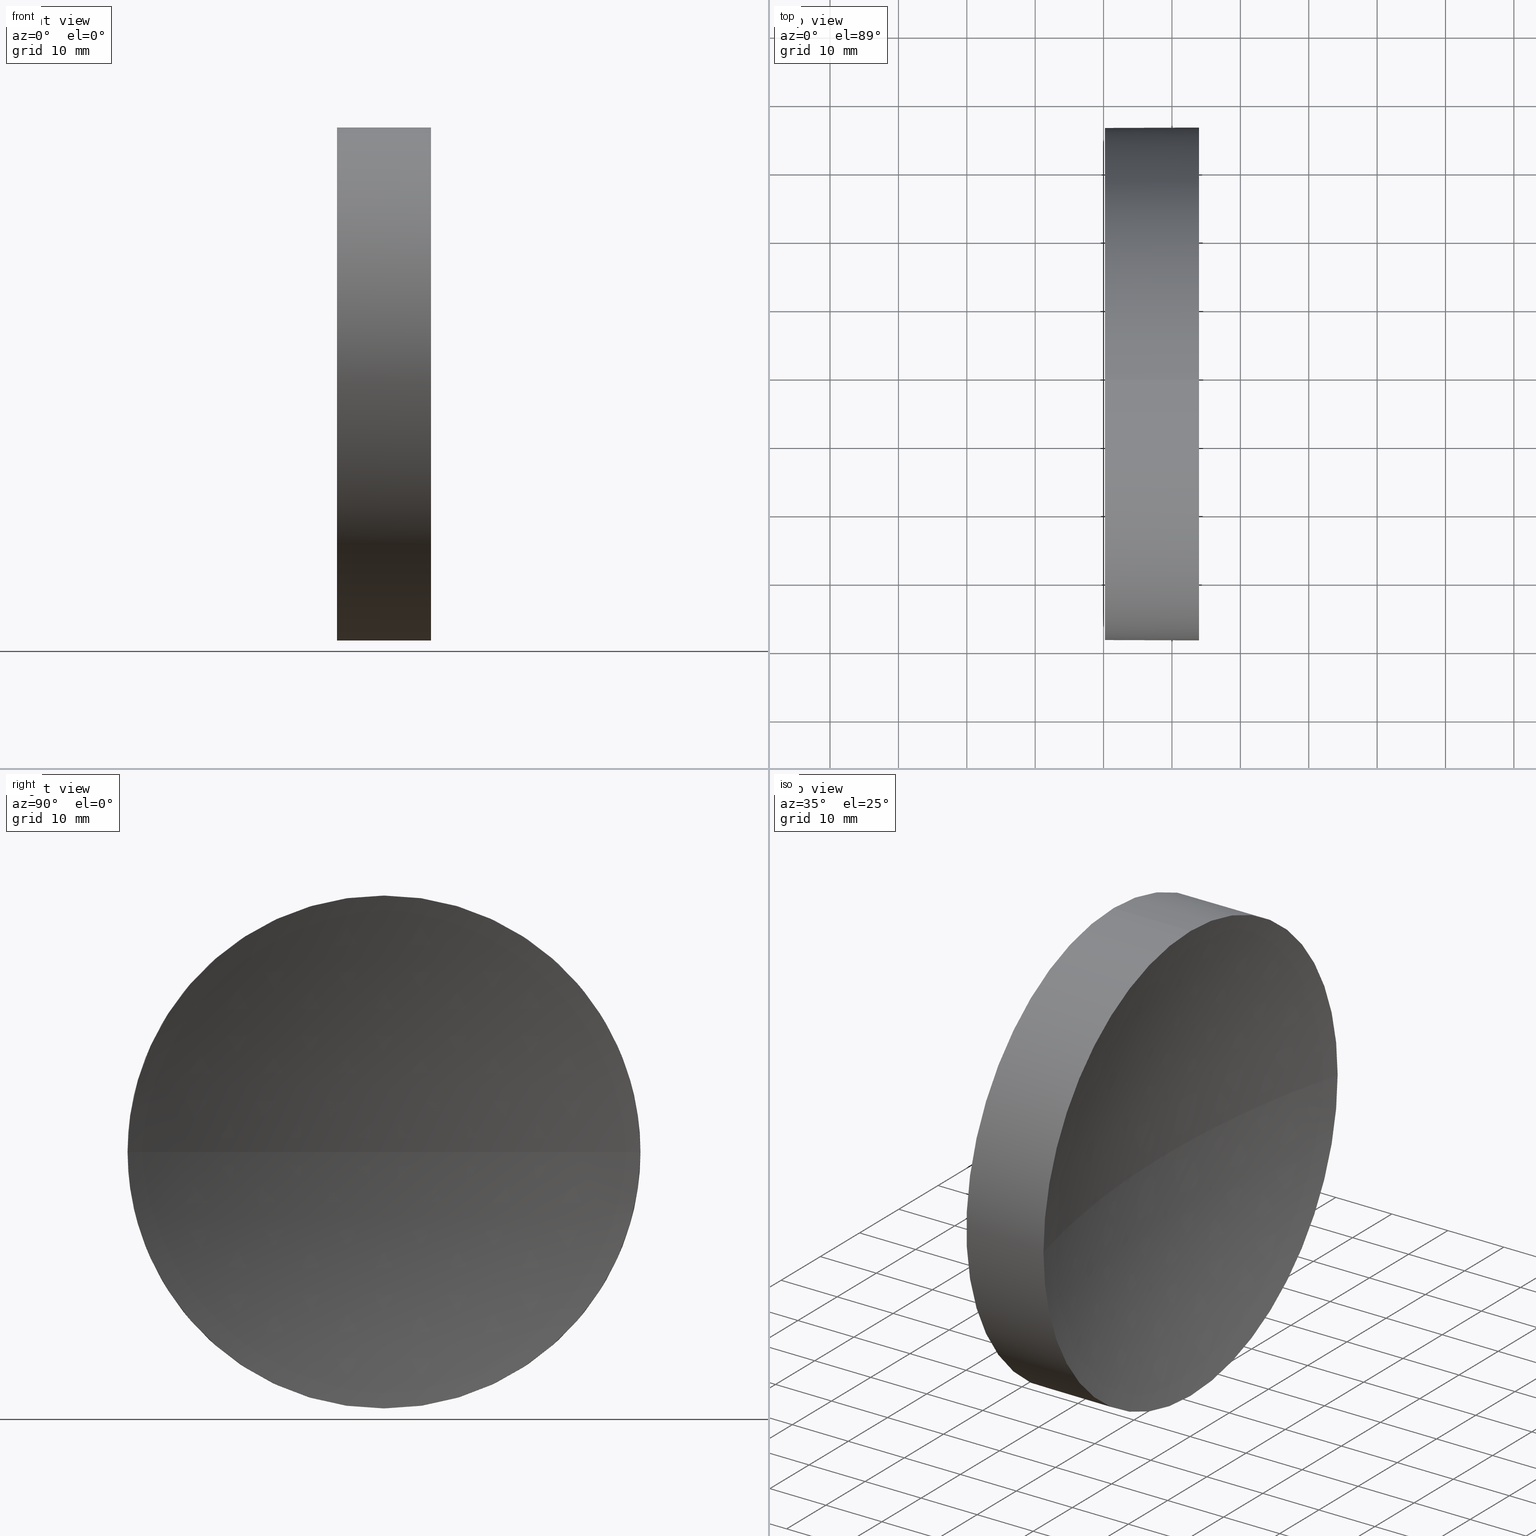
[diagram: canonical four-view strip — front | top / right | iso, engineering-drawing reading convention]
A machine part, canonical four-view strip (front | top / right | iso — engineering-drawing reading convention). The complete STEP part file that produces these views, byte-faithful:
ISO-10303-21;
HEADER;
FILE_DESCRIPTION (( 'STEP AP214' ),
    '1' );
FILE_NAME ('270058.STEP',
    '2019-07-23T07:17:55',
    ( '' ),
    ( '' ),
    'SwSTEP 2.0',
    'SolidWorks 2016',
    '' );
FILE_SCHEMA (( 'AUTOMOTIVE_DESIGN' ));
ENDSEC;

DATA;
#1 =( GEOMETRIC_REPRESENTATION_CONTEXT ( 3 ) GLOBAL_UNCERTAINTY_ASSIGNED_CONTEXT ( ( #147 ) ) GLOBAL_UNIT_ASSIGNED_CONTEXT ( ( #126, #183, #181 ) ) REPRESENTATION_CONTEXT ( 'NONE', 'WORKASPACE' ) );
#2 = EDGE_LOOP ( 'NONE', ( #3, #33, #104, #71 ) ) ;
#3 = ORIENTED_EDGE ( 'NONE', *, *, #4, .F. ) ;
#4 = EDGE_CURVE ( 'NONE', #15, #90, #48, .T. ) ;
#5 = EDGE_CURVE ( 'NONE', #90, #164, #162, .T. ) ;
#6 = ORIENTED_EDGE ( 'NONE', *, *, #148, .T. ) ;
#7 = AXIS2_PLACEMENT_3D ( 'NONE', #86, #98, #154 ) ;
#8 = CARTESIAN_POINT ( 'NONE',  ( 243.9627364224879800, 176.2560422467448700, 4.592425496802572000E-015 ) ) ;
#9 = ADVANCED_FACE ( 'NONE', ( #80 ), #128, .F. ) ;
#10 = DIRECTION ( 'NONE',  ( 1.000000000000000000, 0.0000000000000000000, 0.0000000000000000000 ) ) ;
#11 = DIRECTION ( 'NONE',  ( 0.0000000000000000000, 0.0000000000000000000, 1.000000000000000000 ) ) ;
#12 = SPHERICAL_SURFACE ( 'NONE', #14, 150.0000000000000300 ) ;
#13 = CARTESIAN_POINT ( 'NONE',  ( 230.1996119052661200, 138.7560422467448700, 0.0000000000000000000 ) ) ;
#14 = AXIS2_PLACEMENT_3D ( 'NONE', #39, #63, #107 ) ;
#15 = VERTEX_POINT ( 'NONE', #8 ) ;
#16 = DIRECTION ( 'NONE',  ( 0.0000000000000000000, -1.000000000000000000, -1.224646799147353200E-016 ) ) ;
#17 = AXIS2_PLACEMENT_3D ( 'NONE', #41, #185, #16 ) ;
#18 = ORIENTED_EDGE ( 'NONE', *, *, #47, .T. ) ;
#19 = EDGE_CURVE ( 'NONE', #70, #15, #150, .T. ) ;
#20 = UNCERTAINTY_MEASURE_WITH_UNIT (LENGTH_MEASURE( 1.000000000000000100E-005 ), #68, 'distance_accuracy_value', 'NONE');
#21 = PRESENTATION_LAYER_ASSIGNMENT (  '', '', ( #84 ) ) ;
#22 = FACE_OUTER_BOUND ( 'NONE', #133, .T. ) ;
#23 = PRESENTATION_STYLE_ASSIGNMENT (( #139 ) ) ;
#24 = ORIENTED_EDGE ( 'NONE', *, *, #115, .T. ) ;
#25 = CARTESIAN_POINT ( 'NONE',  ( 217.9702860043302100, 138.7560422467448700, -37.50000000000000700 ) ) ;
#26 = DIRECTION ( 'NONE',  ( -1.000000000000000000, -0.0000000000000000000, -0.0000000000000000000 ) ) ;
#27 =( GEOMETRIC_REPRESENTATION_CONTEXT ( 3 ) GLOBAL_UNCERTAINTY_ASSIGNED_CONTEXT ( ( #118 ) ) GLOBAL_UNIT_ASSIGNED_CONTEXT ( ( #66, #100, #29 ) ) REPRESENTATION_CONTEXT ( 'NONE', 'WORKASPACE' ) );
#28 = CARTESIAN_POINT ( 'NONE',  ( 389.1996119052661200, 138.7560422467449000, 0.0000000000000000000 ) ) ;
#29 =( NAMED_UNIT ( * ) SI_UNIT ( $, .STERADIAN. ) SOLID_ANGLE_UNIT ( ) );
#30 = CIRCLE ( 'NONE', #35, 37.50000000000000700 ) ;
#31 = SURFACE_SIDE_STYLE ('',( #146 ) ) ;
#32 = AXIS2_PLACEMENT_3D ( 'NONE', #171, #130, #186 ) ;
#33 = ORIENTED_EDGE ( 'NONE', *, *, #142, .T. ) ;
#34 = ORIENTED_EDGE ( 'NONE', *, *, #103, .F. ) ;
#35 = AXIS2_PLACEMENT_3D ( 'NONE', #175, #111, #69 ) ;
#36 = COLOUR_RGB ( '',1.000000000000000000, 1.000000000000000000, 1.000000000000000000 ) ;
#37 = SURFACE_SIDE_STYLE ('',( #102 ) ) ;
#38 = FILL_AREA_STYLE_COLOUR ( '', #144 ) ;
#39 = CARTESIAN_POINT ( 'NONE',  ( 389.1996119052661200, 138.7560422467449000, 0.0000000000000000000 ) ) ;
#40 = CARTESIAN_POINT ( 'NONE',  ( 230.1996119052661200, 138.7560422467448700, -37.50000000000000700 ) ) ;
#41 = CARTESIAN_POINT ( 'NONE',  ( 389.1996119052661200, 138.7560422467449000, 0.0000000000000000000 ) ) ;
#42 = ORIENTED_EDGE ( 'NONE', *, *, #115, .F. ) ;
#43 = CARTESIAN_POINT ( 'NONE',  ( 217.9702860043302100, 138.7560422467448700, 0.0000000000000000000 ) ) ;
#44 = ORIENTED_EDGE ( 'NONE', *, *, #122, .T. ) ;
#45 = CYLINDRICAL_SURFACE ( 'NONE', #163, 37.50000000000000700 ) ;
#46 = ADVANCED_BREP_SHAPE_REPRESENTATION ( '270058', ( #87, #32 ), #27 ) ;
#47 = EDGE_CURVE ( 'NONE', #113, #70, #136, .T. ) ;
#48 = CIRCLE ( 'NONE', #135, 37.50000000000000700 ) ;
#49 = CARTESIAN_POINT ( 'NONE',  ( 389.1996119052661200, 138.7560422467449000, 0.0000000000000000000 ) ) ;
#50 = ADVANCED_FACE ( 'NONE', ( #22 ), #12, .F. ) ;
#51 = DIRECTION ( 'NONE',  ( 0.0000000000000000000, 0.0000000000000000000, 1.000000000000000000 ) ) ;
#52 = CARTESIAN_POINT ( 'NONE',  ( 217.9702860043302100, 138.7560422467448700, 37.50000000000000700 ) ) ;
#53 = DIRECTION ( 'NONE',  ( 0.0000000000000000000, 0.0000000000000000000, -1.000000000000000000 ) ) ;
#54 =( NAMED_UNIT ( * ) SI_UNIT ( $, .STERADIAN. ) SOLID_ANGLE_UNIT ( ) );
#55 = VECTOR ( 'NONE', #110, 1000.000000000000000 ) ;
#56 = VERTEX_POINT ( 'NONE', #67 ) ;
#57 = PRESENTATION_LAYER_ASSIGNMENT (  '', '', ( #105 ) ) ;
#58 = CIRCLE ( 'NONE', #7, 37.50000000000000700 ) ;
#59 = AXIS2_PLACEMENT_3D ( 'NONE', #138, #97, #78 ) ;
#60 = DIRECTION ( 'NONE',  ( 0.0000000000000000000, 0.0000000000000000000, -1.000000000000000000 ) ) ;
#61 = PRODUCT_DEFINITION_CONTEXT ( 'detailed design', #101, 'design' ) ;
#62 = ORIENTED_EDGE ( 'NONE', *, *, #47, .F. ) ;
#63 = DIRECTION ( 'NONE',  ( 0.0000000000000000000, 0.0000000000000000000, 1.000000000000000000 ) ) ;
#64 = AXIS2_PLACEMENT_3D ( 'NONE', #13, #10, #60 ) ;
#65 = DIRECTION ( 'NONE',  ( -1.000000000000000000, -0.0000000000000000000, -0.0000000000000000000 ) ) ;
#66 =( LENGTH_UNIT ( ) NAMED_UNIT ( * ) SI_UNIT ( .MILLI., .METRE. ) );
#67 = CARTESIAN_POINT ( 'NONE',  ( 239.1996119052661200, 138.7560422467449000, 0.0000000000000000000 ) ) ;
#68 =( LENGTH_UNIT ( ) NAMED_UNIT ( * ) SI_UNIT ( .MILLI., .METRE. ) );
#69 = DIRECTION ( 'NONE',  ( 0.0000000000000000000, 0.0000000000000000000, 1.000000000000000000 ) ) ;
#70 = VERTEX_POINT ( 'NONE', #169 ) ;
#71 = ORIENTED_EDGE ( 'NONE', *, *, #148, .F. ) ;
#72 = ORIENTED_EDGE ( 'NONE', *, *, #4, .T. ) ;
#73 = EDGE_LOOP ( 'NONE', ( #178, #24 ) ) ;
#74 = SPHERICAL_SURFACE ( 'NONE', #77, 150.0000000000000300 ) ;
#75 = FACE_OUTER_BOUND ( 'NONE', #166, .T. ) ;
#76 = CARTESIAN_POINT ( 'NONE',  ( 243.9627364224879800, 138.7560422467448700, 0.0000000000000000000 ) ) ;
#77 = AXIS2_PLACEMENT_3D ( 'NONE', #49, #184, #170 ) ;
#78 = DIRECTION ( 'NONE',  ( 0.0000000000000000000, 0.0000000000000000000, 1.000000000000000000 ) ) ;
#79 = FILL_AREA_STYLE_COLOUR ( '', #36 ) ;
#80 = FACE_OUTER_BOUND ( 'NONE', #73, .T. ) ;
#81 = CARTESIAN_POINT ( 'NONE',  ( 243.9627364224879800, 101.2560422467449000, 0.0000000000000000000 ) ) ;
#82 = ADVANCED_FACE ( 'NONE', ( #99 ), #74, .F. ) ;
#83 = DIRECTION ( 'NONE',  ( 0.0000000000000000000, 0.0000000000000000000, 1.000000000000000000 ) ) ;
#84 = STYLED_ITEM ( 'NONE', ( #91 ), #46 ) ;
#85 = DIRECTION ( 'NONE',  ( -1.000000000000000000, -0.0000000000000000000, -0.0000000000000000000 ) ) ;
#86 = CARTESIAN_POINT ( 'NONE',  ( 230.1996119052661200, 138.7560422467448700, 0.0000000000000000000 ) ) ;
#87 = MANIFOLD_SOLID_BREP ( '��ת1', #134 ) ;
#88 = PRODUCT_DEFINITION ( 'δ֪', '', #127, #61 ) ;
#89 = CIRCLE ( 'NONE', #17, 150.0000000000000300 ) ;
#90 = VERTEX_POINT ( 'NONE', #109 ) ;
#91 = PRESENTATION_STYLE_ASSIGNMENT (( #112 ) ) ;
#92 = CYLINDRICAL_SURFACE ( 'NONE', #132, 37.50000000000000700 ) ;
#93 = VECTOR ( 'NONE', #65, 1000.000000000000000 ) ;
#94 = CARTESIAN_POINT ( 'NONE',  ( 217.9702860043302100, 138.7560422467448700, 0.0000000000000000000 ) ) ;
#95 = PRODUCT_CONTEXT ( 'NONE', #159, 'mechanical' ) ;
#96 = ADVANCED_FACE ( 'NONE', ( #75 ), #45, .T. ) ;
#97 = DIRECTION ( 'NONE',  ( -1.000000000000000000, -0.0000000000000000000, -0.0000000000000000000 ) ) ;
#98 = DIRECTION ( 'NONE',  ( -1.000000000000000000, -0.0000000000000000000, -0.0000000000000000000 ) ) ;
#99 = FACE_OUTER_BOUND ( 'NONE', #2, .T. ) ;
#100 =( NAMED_UNIT ( * ) PLANE_ANGLE_UNIT ( ) SI_UNIT ( $, .RADIAN. ) );
#101 = APPLICATION_CONTEXT ( 'automotive_design' ) ;
#102 = SURFACE_STYLE_FILL_AREA ( #123 ) ;
#103 = EDGE_CURVE ( 'NONE', #116, #164, #30, .T. ) ;
#104 = ORIENTED_EDGE ( 'NONE', *, *, #122, .F. ) ;
#105 = STYLED_ITEM ( 'NONE', ( #23 ), #87 ) ;
#106 = CARTESIAN_POINT ( 'NONE',  ( 243.9627364224879800, 138.7560422467448700, 0.0000000000000000000 ) ) ;
#107 = DIRECTION ( 'NONE',  ( 0.0000000000000000000, -1.000000000000000000, 0.0000000000000000000 ) ) ;
#108 = DIRECTION ( 'NONE',  ( -1.000000000000000000, -0.0000000000000000000, -0.0000000000000000000 ) ) ;
#109 = CARTESIAN_POINT ( 'NONE',  ( 243.9627364224879800, 138.7560422467448700, -37.50000000000000700 ) ) ;
#110 = DIRECTION ( 'NONE',  ( -1.000000000000000000, -0.0000000000000000000, -0.0000000000000000000 ) ) ;
#111 = DIRECTION ( 'NONE',  ( -1.000000000000000000, -0.0000000000000000000, -0.0000000000000000000 ) ) ;
#112 = SURFACE_STYLE_USAGE ( .BOTH. , #31 ) ;
#113 = VERTEX_POINT ( 'NONE', #81 ) ;
#114 = APPLICATION_PROTOCOL_DEFINITION ( 'draft international standard', 'automotive_design', 1998, #101 ) ;
#115 = EDGE_CURVE ( 'NONE', #164, #116, #58, .T. ) ;
#116 = VERTEX_POINT ( 'NONE', #156 ) ;
#117 = FACE_OUTER_BOUND ( 'NONE', #131, .T. ) ;
#118 = UNCERTAINTY_MEASURE_WITH_UNIT (LENGTH_MEASURE( 1.000000000000000100E-005 ), #66, 'distance_accuracy_value', 'NONE');
#119 = AXIS2_PLACEMENT_3D ( 'NONE', #140, #108, #83 ) ;
#120 = CIRCLE ( 'NONE', #137, 150.0000000000000300 ) ;
#121 = ORIENTED_EDGE ( 'NONE', *, *, #19, .T. ) ;
#122 = EDGE_CURVE ( 'NONE', #113, #56, #120, .T. ) ;
#123 = FILL_AREA_STYLE ('',( #79 ) ) ;
#124 = DIRECTION ( 'NONE',  ( -1.000000000000000000, -0.0000000000000000000, -0.0000000000000000000 ) ) ;
#125 = ORIENTED_EDGE ( 'NONE', *, *, #5, .F. ) ;
#126 =( LENGTH_UNIT ( ) NAMED_UNIT ( * ) SI_UNIT ( .MILLI., .METRE. ) );
#127 = PRODUCT_DEFINITION_FORMATION_WITH_SPECIFIED_SOURCE ( '�κ�', '', #160, .NOT_KNOWN. ) ;
#128 = PLANE ( 'NONE',  #64 ) ;
#129 = DIRECTION ( 'NONE',  ( -1.000000000000000000, 0.0000000000000000000, 0.0000000000000000000 ) ) ;
#130 = DIRECTION ( 'NONE',  ( 0.0000000000000000000, 0.0000000000000000000, 1.000000000000000000 ) ) ;
#131 = EDGE_LOOP ( 'NONE', ( #72, #158, #34, #157, #121 ) ) ;
#132 = AXIS2_PLACEMENT_3D ( 'NONE', #43, #85, #11 ) ;
#133 = EDGE_LOOP ( 'NONE', ( #177, #165, #62, #44 ) ) ;
#134 = CLOSED_SHELL ( 'NONE', ( #172, #82, #50, #96, #9 ) ) ;
#135 = AXIS2_PLACEMENT_3D ( 'NONE', #76, #168, #151 ) ;
#136 = CIRCLE ( 'NONE', #59, 37.50000000000000700 ) ;
#137 = AXIS2_PLACEMENT_3D ( 'NONE', #28, #53, #129 ) ;
#138 = CARTESIAN_POINT ( 'NONE',  ( 243.9627364224879800, 138.7560422467448700, 0.0000000000000000000 ) ) ;
#139 = SURFACE_STYLE_USAGE ( .BOTH. , #37 ) ;
#140 = CARTESIAN_POINT ( 'NONE',  ( 243.9627364224879800, 138.7560422467448700, 0.0000000000000000000 ) ) ;
#141 = AXIS2_PLACEMENT_3D ( 'NONE', #106, #124, #152 ) ;
#142 = EDGE_CURVE ( 'NONE', #15, #56, #89, .T. ) ;
#143 = PRODUCT_RELATED_PRODUCT_CATEGORY ( 'part', '', ( #160 ) ) ;
#144 = COLOUR_RGB ( '',1.000000000000000000, 1.000000000000000000, 1.000000000000000000 ) ;
#145 = MECHANICAL_DESIGN_GEOMETRIC_PRESENTATION_REPRESENTATION (  '', ( #84 ), #161 ) ;
#146 = SURFACE_STYLE_FILL_AREA ( #153 ) ;
#147 = UNCERTAINTY_MEASURE_WITH_UNIT (LENGTH_MEASURE( 1.000000000000000100E-005 ), #126, 'distance_accuracy_value', 'NONE');
#148 = EDGE_CURVE ( 'NONE', #90, #113, #155, .T. ) ;
#149 = ORIENTED_EDGE ( 'NONE', *, *, #179, .T. ) ;
#150 = CIRCLE ( 'NONE', #141, 37.50000000000000700 ) ;
#151 = DIRECTION ( 'NONE',  ( 0.0000000000000000000, 0.0000000000000000000, 1.000000000000000000 ) ) ;
#152 = DIRECTION ( 'NONE',  ( 0.0000000000000000000, 0.0000000000000000000, 1.000000000000000000 ) ) ;
#153 = FILL_AREA_STYLE ('',( #38 ) ) ;
#154 = DIRECTION ( 'NONE',  ( 0.0000000000000000000, 0.0000000000000000000, 1.000000000000000000 ) ) ;
#155 = CIRCLE ( 'NONE', #119, 37.50000000000000700 ) ;
#156 = CARTESIAN_POINT ( 'NONE',  ( 230.1996119052661200, 138.7560422467448700, 37.50000000000000700 ) ) ;
#157 = ORIENTED_EDGE ( 'NONE', *, *, #179, .F. ) ;
#158 = ORIENTED_EDGE ( 'NONE', *, *, #5, .T. ) ;
#159 = APPLICATION_CONTEXT ( 'automotive_design' ) ;
#160 = PRODUCT ( '270058', '270058', '', ( #95 ) ) ;
#161 =( GEOMETRIC_REPRESENTATION_CONTEXT ( 3 ) GLOBAL_UNCERTAINTY_ASSIGNED_CONTEXT ( ( #20 ) ) GLOBAL_UNIT_ASSIGNED_CONTEXT ( ( #68, #176, #54 ) ) REPRESENTATION_CONTEXT ( 'NONE', 'WORKASPACE' ) );
#162 = LINE ( 'NONE', #25, #93 ) ;
#163 = AXIS2_PLACEMENT_3D ( 'NONE', #94, #26, #51 ) ;
#164 = VERTEX_POINT ( 'NONE', #40 ) ;
#165 = ORIENTED_EDGE ( 'NONE', *, *, #19, .F. ) ;
#166 = EDGE_LOOP ( 'NONE', ( #125, #6, #18, #149, #42 ) ) ;
#167 = PRODUCT_DEFINITION_SHAPE ( 'NONE', 'NONE',  #88 ) ;
#168 = DIRECTION ( 'NONE',  ( -1.000000000000000000, -0.0000000000000000000, -0.0000000000000000000 ) ) ;
#169 = CARTESIAN_POINT ( 'NONE',  ( 243.9627364224879800, 138.7560422467448700, 37.50000000000000700 ) ) ;
#170 = DIRECTION ( 'NONE',  ( 0.0000000000000000000, -1.000000000000000000, 0.0000000000000000000 ) ) ;
#171 = CARTESIAN_POINT ( 'NONE',  ( 0.0000000000000000000, 0.0000000000000000000, 0.0000000000000000000 ) ) ;
#172 = ADVANCED_FACE ( 'NONE', ( #117 ), #92, .T. ) ;
#173 = LINE ( 'NONE', #52, #55 ) ;
#174 = APPLICATION_PROTOCOL_DEFINITION ( 'draft international standard', 'automotive_design', 1998, #159 ) ;
#175 = CARTESIAN_POINT ( 'NONE',  ( 230.1996119052661200, 138.7560422467448700, 0.0000000000000000000 ) ) ;
#176 =( NAMED_UNIT ( * ) PLANE_ANGLE_UNIT ( ) SI_UNIT ( $, .RADIAN. ) );
#177 = ORIENTED_EDGE ( 'NONE', *, *, #142, .F. ) ;
#178 = ORIENTED_EDGE ( 'NONE', *, *, #103, .T. ) ;
#179 = EDGE_CURVE ( 'NONE', #70, #116, #173, .T. ) ;
#180 = MECHANICAL_DESIGN_GEOMETRIC_PRESENTATION_REPRESENTATION (  '', ( #105 ), #1 ) ;
#181 =( NAMED_UNIT ( * ) SI_UNIT ( $, .STERADIAN. ) SOLID_ANGLE_UNIT ( ) );
#182 = SHAPE_DEFINITION_REPRESENTATION ( #167, #46 ) ;
#183 =( NAMED_UNIT ( * ) PLANE_ANGLE_UNIT ( ) SI_UNIT ( $, .RADIAN. ) );
#184 = DIRECTION ( 'NONE',  ( 0.0000000000000000000, 0.0000000000000000000, 1.000000000000000000 ) ) ;
#185 = DIRECTION ( 'NONE',  ( 0.0000000000000000000, -1.224646799147353200E-016, 1.000000000000000000 ) ) ;
#186 = DIRECTION ( 'NONE',  ( 1.000000000000000000, 0.0000000000000000000, 0.0000000000000000000 ) ) ;
ENDSEC;
END-ISO-10303-21;
